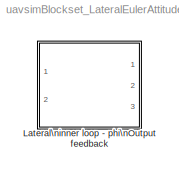
MODEL uavsimBlockset_LateralEulerAttitudeController
KIND library
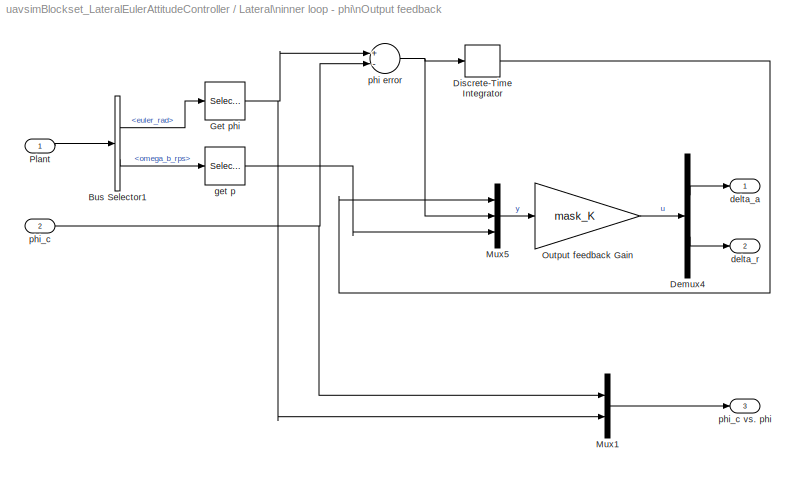
BLOCK [SubSystem] Lateral\ninner loop - phi\nOutput feedback
  FunctionWithSeparateData = off
  MaskHideContents = off
  MinAlgLoopOccurrences = off
  Opaque = off
  Ports = [2, 3]
  PropExecContextOutsideSubsystem = off
  RTWSystemCode = Auto
  RequestExecContextInheritance = off
  SID = 2021
BLOCK [BusSelector] Lateral\ninner loop - phi\nOutput feedback/Bus Selector1
  OutputSignals = Kinematics.Attitude.euler_rad,Kinematics.RotationalVelocity.omega_b_rps
  Ports = [1, 2]
  SID = 2059
BLOCK [Demux] Lateral\ninner loop - phi\nOutput feedback/Demux4
  DisplayOption = bar
  Outputs = 2
  Ports = [1, 2]
  SID = 2054
BLOCK [DiscreteIntegrator] Lateral\ninner loop - phi\nOutput feedback/Discrete-Time Integrator
  ICPrevOutput = DiscIntNeverNeededParam
  ICPrevScaledInput = DiscIntNeverNeededParam
  Ports = [1, 1]
  SID = 4428
  SampleTime = -1
BLOCK [Selector] Lateral\ninner loop - phi\nOutput feedback/Get phi
  IndexOptions = Index vector (dialog)
  Indices = 1
  InputPortWidth = 3
  OutputSizes = 1
  Ports = [1, 1]
  SID = 2062
BLOCK [Mux] Lateral\ninner loop - phi\nOutput feedback/Mux1
  DisplayOption = bar
  Inputs = 2
  Ports = [2, 1]
  SID = 2064
BLOCK [Mux] Lateral\ninner loop - phi\nOutput feedback/Mux5
  DisplayOption = bar
  Inputs = 3
  Ports = [3, 1]
  SID = 2049
BLOCK [Gain] Lateral\ninner loop - phi\nOutput feedback/Output feedback Gain
  Gain = mask_K
  Multiplication = Matrix(K*u)
  OutDataTypeStr = Inherit: Inherit via internal rule
  ParamDataTypeStr = Inherit: Inherit via internal rule
  SID = 2046
  SaturateOnIntegerOverflow = off
BLOCK [Inport] Lateral\ninner loop - phi\nOutput feedback/Plant
  IconDisplay = Port number
  OutDataTypeStr = Bus: Airframe
  SID = 2057
BLOCK [Outport] Lateral\ninner loop - phi\nOutput feedback/delta_a
  IconDisplay = Port number
  SID = 2055
BLOCK [Outport] Lateral\ninner loop - phi\nOutput feedback/delta_r
  IconDisplay = Port number
  Port = 2
  SID = 2056
BLOCK [Selector] Lateral\ninner loop - phi\nOutput feedback/get p
  IndexOptions = Index vector (dialog)
  Indices = 1
  InputPortWidth = 3
  OutputSizes = 1
  Ports = [1, 1]
  SID = 2063
BLOCK [Sum] Lateral\ninner loop - phi\nOutput feedback/phi error
  InputSameDT = off
  Inputs = +-
  OutDataTypeStr = Inherit: Inherit via internal rule
  Ports = [2, 1]
  SID = 2052
  SaturateOnIntegerOverflow = off
BLOCK [Inport] Lateral\ninner loop - phi\nOutput feedback/phi_c
  IconDisplay = Port number
  Port = 2
  SID = 2058
BLOCK [Outport] Lateral\ninner loop - phi\nOutput feedback/phi_c vs. phi
  IconDisplay = Port number
  Port = 3
  SID = 2065
LINE Lateral\ninner loop - phi\nOutput feedback/Bus Selector1:1 -> Lateral\ninner loop - phi\nOutput feedback/Get phi:1
LINE Lateral\ninner loop - phi\nOutput feedback/Bus Selector1:2 -> Lateral\ninner loop - phi\nOutput feedback/get p:1
LINE Lateral\ninner loop - phi\nOutput feedback/Demux4:1 -> Lateral\ninner loop - phi\nOutput feedback/delta_a:1
LINE Lateral\ninner loop - phi\nOutput feedback/Demux4:2 -> Lateral\ninner loop - phi\nOutput feedback/delta_r:1
LINE Lateral\ninner loop - phi\nOutput feedback/Discrete-Time Integrator:1 -> Lateral\ninner loop - phi\nOutput feedback/Mux5:1
NET Lateral\ninner loop - phi\nOutput feedback/Get phi:1 -> Lateral\ninner loop - phi\nOutput feedback/Mux1:2, Lateral\ninner loop - phi\nOutput feedback/phi error:1
LINE Lateral\ninner loop - phi\nOutput feedback/Mux1:1 -> Lateral\ninner loop - phi\nOutput feedback/phi_c vs. phi:1
LINE Lateral\ninner loop - phi\nOutput feedback/Mux5:1 -> Lateral\ninner loop - phi\nOutput feedback/Output feedback Gain:1
LINE Lateral\ninner loop - phi\nOutput feedback/Output feedback Gain:1 -> Lateral\ninner loop - phi\nOutput feedback/Demux4:1
LINE Lateral\ninner loop - phi\nOutput feedback/Plant:1 -> Lateral\ninner loop - phi\nOutput feedback/Bus Selector1:1
LINE Lateral\ninner loop - phi\nOutput feedback/get p:1 -> Lateral\ninner loop - phi\nOutput feedback/Mux5:3
NET Lateral\ninner loop - phi\nOutput feedback/phi error:1 -> Lateral\ninner loop - phi\nOutput feedback/Discrete-Time Integrator:1, Lateral\ninner loop - phi\nOutput feedback/Mux5:2
NET Lateral\ninner loop - phi\nOutput feedback/phi_c:1 -> Lateral\ninner loop - phi\nOutput feedback/Mux1:1, Lateral\ninner loop - phi\nOutput feedback/phi error:2
note: NET lines group one-source signal fan-out (src -> all destinations, sorted); 1:1 wires keep LINE
